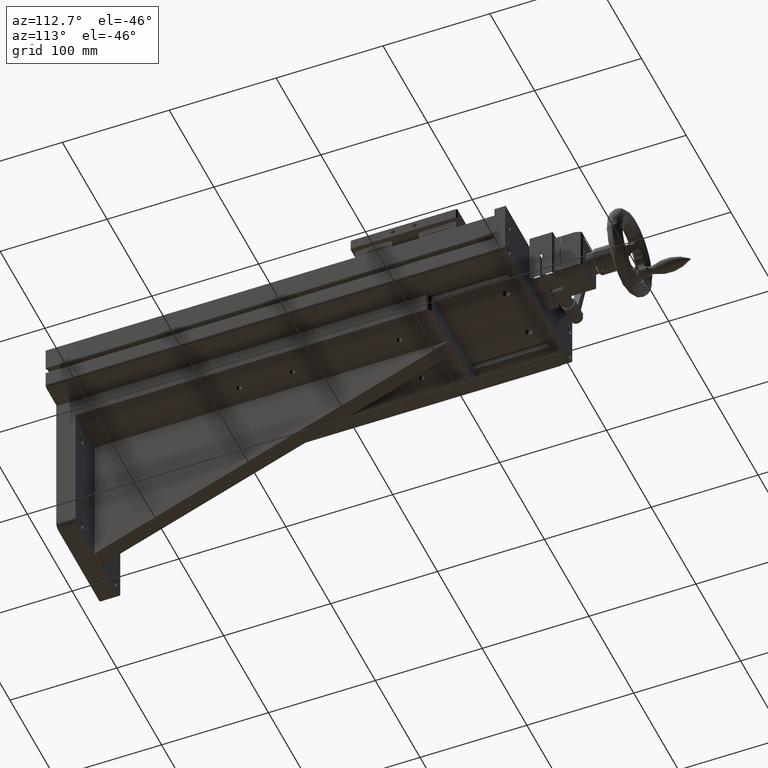
[diagram: clean part render]
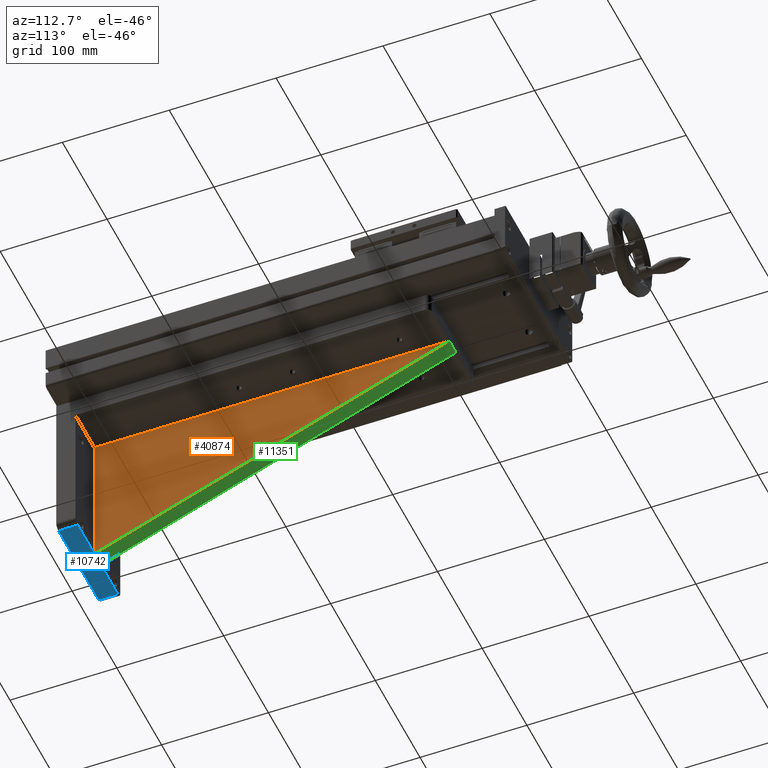
[diagram: same view with three faces highlighted in distinct colors, each labeled with its STEP entity id]
A machine part, auxiliary view with three faces highlighted in distinct colors.
Their STEP definitions:

[orange] entity #40874 — the highlighted planar face has unit normal (-1, 0, 0).
#944 = DIRECTION ( 'NONE',  ( -3.862243395819812258E-15, -0.9295364816277258413, -0.3687301578704247906 ) ) ;
#964 = EDGE_CURVE ( 'NONE', #8383, #6045, #48757, .T. ) ;
#1077 = EDGE_CURVE ( 'NONE', #39359, #28882, #38891, .T. ) ;
#3143 = ORIENTED_EDGE ( 'NONE', *, *, #31267, .F. ) ;
#3883 = EDGE_CURVE ( 'NONE', #8588, #28882, #20189, .T. ) ;
#5206 = CARTESIAN_POINT ( 'NONE',  ( -74.68535181246397769, -167.9865353911119712, -74.49999999999990052 ) ) ;
#6045 = VERTEX_POINT ( 'NONE', #40251 ) ;
#6078 = CARTESIAN_POINT ( 'NONE',  ( -74.68535181246261345, 163.5134646088880572, 56.99999999999992895 ) ) ;
#6537 = VECTOR ( 'NONE', #944, 1000.000000000000114 ) ;
#7136 = ORIENTED_EDGE ( 'NONE', *, *, #3883, .T. ) ;
#7243 = CARTESIAN_POINT ( 'NONE',  ( -74.68535181246399191, -168.4865353911120280, -75.00000000000007105 ) ) ;
#8383 = VERTEX_POINT ( 'NONE', #6078 ) ;
#8588 = VERTEX_POINT ( 'NONE', #27476 ) ;
#10703 = LINE ( 'NONE', #36873, #25330 ) ;
#12159 = ORIENTED_EDGE ( 'NONE', *, *, #48586, .F. ) ;
#18226 = DIRECTION ( 'NONE',  ( -1.000000000000000000, 0.000000000000000000, 1.047444401652940007E-14 ) ) ;
#18277 = DIRECTION ( 'NONE',  ( -0.000000000000000000, -1.000000000000000000, -0.000000000000000000 ) ) ;
#18724 = PLANE ( 'NONE',  #27946 ) ;
#19774 = CARTESIAN_POINT ( 'NONE',  ( -74.68535181246397769, -167.9865353911119996, -74.49999999999998579 ) ) ;
#20189 = LINE ( 'NONE', #32024, #28384 ) ;
#20571 = VECTOR ( 'NONE', #41954, 1000.000000000000000 ) ;
#21388 = VECTOR ( 'NONE', #18277, 1000.000000000000000 ) ;
#23290 = FACE_OUTER_BOUND ( 'NONE', #25819, .T. ) ;
#23913 = CARTESIAN_POINT ( 'NONE',  ( -74.68535181246261345, 163.5134646088880572, 56.99999999999992895 ) ) ;
#24641 = LINE ( 'NONE', #23913, #6537 ) ;
#25330 = VECTOR ( 'NONE', #41424, 1000.000000000000000 ) ;
#25819 = EDGE_LOOP ( 'NONE', ( #3143, #7136, #33579, #12159, #32844 ) ) ;
#27476 = CARTESIAN_POINT ( 'NONE',  ( -74.68535181246262766, -168.4865353911120280, 56.45849999994601376 ) ) ;
#27946 = AXIS2_PLACEMENT_3D ( 'NONE', #37623, #18226, #33594 ) ;
#28231 = DIRECTION ( 'NONE',  ( -1.047444401652940007E-14, -0.000000000000000000, -1.000000000000000000 ) ) ;
#28384 = VECTOR ( 'NONE', #28231, 1000.000000000000000 ) ;
#28882 = VERTEX_POINT ( 'NONE', #7243 ) ;
#29631 = CARTESIAN_POINT ( 'NONE',  ( -74.68535181246261345, -168.4865353911120280, 56.99999999999992895 ) ) ;
#31267 = EDGE_CURVE ( 'NONE', #8588, #6045, #10703, .T. ) ;
#32024 = CARTESIAN_POINT ( 'NONE',  ( -74.68535181246399191, -168.4865353911120280, -75.00000000000007105 ) ) ;
#32844 = ORIENTED_EDGE ( 'NONE', *, *, #964, .T. ) ;
#33579 = ORIENTED_EDGE ( 'NONE', *, *, #1077, .F. ) ;
#33594 = DIRECTION ( 'NONE',  ( 1.047444401652940007E-14, 0.000000000000000000, 1.000000000000000000 ) ) ;
#36873 = CARTESIAN_POINT ( 'NONE',  ( -74.68535181246262766, -167.9450353910012552, 56.99999999999992895 ) ) ;
#37623 = CARTESIAN_POINT ( 'NONE',  ( -74.68535181246321031, -11.48653539111199606, -6.938893903907228378E-14 ) ) ;
#38891 = LINE ( 'NONE', #19774, #20571 ) ;
#39359 = VERTEX_POINT ( 'NONE', #5206 ) ;
#40251 = CARTESIAN_POINT ( 'NONE',  ( -74.68535181246261345, -167.9450353910012552, 56.99999999999992895 ) ) ;
#40874 = ADVANCED_FACE ( 'NONE', ( #23290 ), #18724, .F. ) ;
#41424 = DIRECTION ( 'NONE',  ( 7.406550392857954263E-15, 0.7071067812236705441, 0.7071067811494246014 ) ) ;
#41954 = DIRECTION ( 'NONE',  ( -7.406550393247208211E-15, -0.7071067811865081598, -0.7071067811865867636 ) ) ;
#48586 = EDGE_CURVE ( 'NONE', #8383, #39359, #24641, .T. ) ;
#48757 = LINE ( 'NONE', #29631, #21388 ) ;

[blue] entity #10742 — the highlighted planar face has unit normal (-0, 0, -1).
#965 = ORIENTED_EDGE ( 'NONE', *, *, #5771, .F. ) ;
#1034 = CARTESIAN_POINT ( 'NONE',  ( -37.18535181246399191, -186.4865353911120280, -75.00000000000045475 ) ) ;
#1207 = CARTESIAN_POINT ( 'NONE',  ( -127.1853518124639919, -186.4865353911120280, -74.99999999999951683 ) ) ;
#1279 = ORIENTED_EDGE ( 'NONE', *, *, #22858, .F. ) ;
#1583 = VERTEX_POINT ( 'NONE', #12483 ) ;
#2179 = CARTESIAN_POINT ( 'NONE',  ( -132.1853518124639777, -186.4865353911120280, -74.99999999999945999 ) ) ;
#2383 = LINE ( 'NONE', #32643, #37423 ) ;
#3057 = CARTESIAN_POINT ( 'NONE',  ( -132.1853518124639777, -168.4865353911120280, -74.99999999999945999 ) ) ;
#3234 = ORIENTED_EDGE ( 'NONE', *, *, #17129, .F. ) ;
#5135 = EDGE_CURVE ( 'NONE', #1583, #28882, #22860, .T. ) ;
#5162 = VERTEX_POINT ( 'NONE', #48423 ) ;
#5324 = DIRECTION ( 'NONE',  ( 0.000000000000000000, 1.000000000000000000, 0.000000000000000000 ) ) ;
#5771 = EDGE_CURVE ( 'NONE', #10675, #13183, #39328, .T. ) ;
#6365 = ORIENTED_EDGE ( 'NONE', *, *, #5135, .T. ) ;
#7243 = CARTESIAN_POINT ( 'NONE',  ( -74.68535181246399191, -168.4865353911120280, -75.00000000000007105 ) ) ;
#7630 = VECTOR ( 'NONE', #26635, 1000.000000000000000 ) ;
#9513 = DIRECTION ( 'NONE',  ( -1.000000000000000000, 0.000000000000000000, 1.047444401652940007E-14 ) ) ;
#10136 = DIRECTION ( 'NONE',  ( 1.000000000000000000, -0.000000000000000000, -1.047444401652940007E-14 ) ) ;
#10675 = VERTEX_POINT ( 'NONE', #44770 ) ;
#10742 = ADVANCED_FACE ( 'NONE', ( #17060 ), #32430, .T. ) ;
#11796 = CARTESIAN_POINT ( 'NONE',  ( -132.1853518124639777, -186.4865353911120280, -74.99999999999945999 ) ) ;
#12483 = CARTESIAN_POINT ( 'NONE',  ( -89.68535181246399191, -168.4865353911120280, -74.99999999999990052 ) ) ;
#13183 = VERTEX_POINT ( 'NONE', #41307 ) ;
#17060 = FACE_OUTER_BOUND ( 'NONE', #44913, .T. ) ;
#17129 = EDGE_CURVE ( 'NONE', #5162, #40808, #32440, .T. ) ;
#17764 = DIRECTION ( 'NONE',  ( 1.000000000000000000, 0.000000000000000000, -1.047444401652940007E-14 ) ) ;
#22858 = EDGE_CURVE ( 'NONE', #40808, #10675, #46280, .T. ) ;
#22860 = LINE ( 'NONE', #30416, #7630 ) ;
#26635 = DIRECTION ( 'NONE',  ( 1.000000000000000000, -0.000000000000000000, -1.047444401652940007E-14 ) ) ;
#28744 = AXIS2_PLACEMENT_3D ( 'NONE', #2179, #44006, #9513 ) ;
#28882 = VERTEX_POINT ( 'NONE', #7243 ) ;
#30394 = EDGE_CURVE ( 'NONE', #28882, #13183, #2383, .T. ) ;
#30416 = CARTESIAN_POINT ( 'NONE',  ( -132.1853518124639777, -168.4865353911120280, -74.99999999999945999 ) ) ;
#32430 = PLANE ( 'NONE',  #28744 ) ;
#32440 = LINE ( 'NONE', #1207, #49449 ) ;
#32643 = CARTESIAN_POINT ( 'NONE',  ( -32.18535181246398480, -168.4865353911120280, -75.00000000000051159 ) ) ;
#34956 = VECTOR ( 'NONE', #5324, 1000.000000000000000 ) ;
#36979 = ORIENTED_EDGE ( 'NONE', *, *, #49414, .T. ) ;
#37423 = VECTOR ( 'NONE', #17764, 1000.000000000000000 ) ;
#39328 = LINE ( 'NONE', #1034, #34956 ) ;
#40808 = VERTEX_POINT ( 'NONE', #45695 ) ;
#41307 = CARTESIAN_POINT ( 'NONE',  ( -37.18535181246399191, -168.4865353911120280, -75.00000000000045475 ) ) ;
#42022 = VECTOR ( 'NONE', #10136, 1000.000000000000000 ) ;
#42498 = DIRECTION ( 'NONE',  ( 1.000000000000000000, 0.000000000000000000, -1.047444401652940007E-14 ) ) ;
#42812 = VECTOR ( 'NONE', #42498, 1000.000000000000000 ) ;
#44006 = DIRECTION ( 'NONE',  ( -1.047444401652940007E-14, 0.000000000000000000, -1.000000000000000000 ) ) ;
#44630 = LINE ( 'NONE', #3057, #42022 ) ;
#44770 = CARTESIAN_POINT ( 'NONE',  ( -37.18535181246399191, -186.4865353911120280, -75.00000000000045475 ) ) ;
#44913 = EDGE_LOOP ( 'NONE', ( #36979, #6365, #46863, #965, #1279, #3234 ) ) ;
#45695 = CARTESIAN_POINT ( 'NONE',  ( -127.1853518124639919, -186.4865353911120280, -74.99999999999951683 ) ) ;
#46280 = LINE ( 'NONE', #11796, #42812 ) ;
#46863 = ORIENTED_EDGE ( 'NONE', *, *, #30394, .T. ) ;
#47802 = DIRECTION ( 'NONE',  ( 0.000000000000000000, -1.000000000000000000, 0.000000000000000000 ) ) ;
#48423 = CARTESIAN_POINT ( 'NONE',  ( -127.1853518124639919, -168.4865353911120280, -74.99999999999951683 ) ) ;
#49414 = EDGE_CURVE ( 'NONE', #5162, #1583, #44630, .T. ) ;
#49449 = VECTOR ( 'NONE', #47802, 1000.000000000000000 ) ;

[green] entity #11351 — the highlighted planar face has unit normal (-0, 0.3687, -0.9295).
#944 = DIRECTION ( 'NONE',  ( -3.862243395819812258E-15, -0.9295364816277258413, -0.3687301578704247906 ) ) ;
#1764 = EDGE_CURVE ( 'NONE', #36825, #49623, #42775, .T. ) ;
#2623 = EDGE_CURVE ( 'NONE', #39359, #36825, #6090, .T. ) ;
#5206 = CARTESIAN_POINT ( 'NONE',  ( -74.68535181246397769, -167.9865353911119712, -74.49999999999990052 ) ) ;
#6078 = CARTESIAN_POINT ( 'NONE',  ( -74.68535181246261345, 163.5134646088880572, 56.99999999999992895 ) ) ;
#6090 = LINE ( 'NONE', #18452, #20564 ) ;
#6537 = VECTOR ( 'NONE', #944, 1000.000000000000114 ) ;
#8234 = PLANE ( 'NONE',  #18289 ) ;
#8383 = VERTEX_POINT ( 'NONE', #6078 ) ;
#11351 = ADVANCED_FACE ( 'NONE', ( #12026 ), #8234, .T. ) ;
#12026 = FACE_OUTER_BOUND ( 'NONE', #15499, .T. ) ;
#12929 = VECTOR ( 'NONE', #16122, 1000.000000000000000 ) ;
#13899 = CARTESIAN_POINT ( 'NONE',  ( -89.68535181246397769, -167.9865353911120849, -74.49999999999981526 ) ) ;
#14657 = DIRECTION ( 'NONE',  ( -1.000000000000000000, 0.000000000000000000, 1.047444401652940007E-14 ) ) ;
#14899 = CARTESIAN_POINT ( 'NONE',  ( -132.1853518124626135, 163.5134646088880572, 57.00000000000052580 ) ) ;
#15499 = EDGE_LOOP ( 'NONE', ( #38179, #35239, #43392, #48902 ) ) ;
#16122 = DIRECTION ( 'NONE',  ( -1.000000000000000000, 0.000000000000000000, 1.047444401652940007E-14 ) ) ;
#16777 = DIRECTION ( 'NONE',  ( -9.736377838131326024E-15, 0.3687301578704248461, -0.9295364816277259523 ) ) ;
#17112 = CARTESIAN_POINT ( 'NONE',  ( -89.68535181246261345, 163.5134646088880572, 57.00000000000007816 ) ) ;
#18289 = AXIS2_PLACEMENT_3D ( 'NONE', #20576, #16777, #24365 ) ;
#18452 = CARTESIAN_POINT ( 'NONE',  ( -82.18535181246399191, -167.9865353911120849, -74.49999999999990052 ) ) ;
#20564 = VECTOR ( 'NONE', #14657, 1000.000000000000000 ) ;
#20576 = CARTESIAN_POINT ( 'NONE',  ( -82.18535181246261345, 163.5134646088880572, 57.00000000000000711 ) ) ;
#23667 = CARTESIAN_POINT ( 'NONE',  ( -89.68535181246261345, 163.5134646088880572, 57.00000000000008527 ) ) ;
#23913 = CARTESIAN_POINT ( 'NONE',  ( -74.68535181246261345, 163.5134646088880572, 56.99999999999992895 ) ) ;
#24365 = DIRECTION ( 'NONE',  ( -3.862243395819812258E-15, -0.9295364816277258413, -0.3687301578704247906 ) ) ;
#24641 = LINE ( 'NONE', #23913, #6537 ) ;
#31122 = VECTOR ( 'NONE', #32186, 1000.000000000000114 ) ;
#32186 = DIRECTION ( 'NONE',  ( 3.862243395819812258E-15, 0.9295364816277258413, 0.3687301578704247906 ) ) ;
#35239 = ORIENTED_EDGE ( 'NONE', *, *, #1764, .T. ) ;
#36825 = VERTEX_POINT ( 'NONE', #13899 ) ;
#38179 = ORIENTED_EDGE ( 'NONE', *, *, #2623, .T. ) ;
#39359 = VERTEX_POINT ( 'NONE', #5206 ) ;
#42775 = LINE ( 'NONE', #23667, #31122 ) ;
#43392 = ORIENTED_EDGE ( 'NONE', *, *, #48033, .F. ) ;
#48033 = EDGE_CURVE ( 'NONE', #8383, #49623, #49416, .T. ) ;
#48586 = EDGE_CURVE ( 'NONE', #8383, #39359, #24641, .T. ) ;
#48902 = ORIENTED_EDGE ( 'NONE', *, *, #48586, .T. ) ;
#49416 = LINE ( 'NONE', #14899, #12929 ) ;
#49623 = VERTEX_POINT ( 'NONE', #17112 ) ;